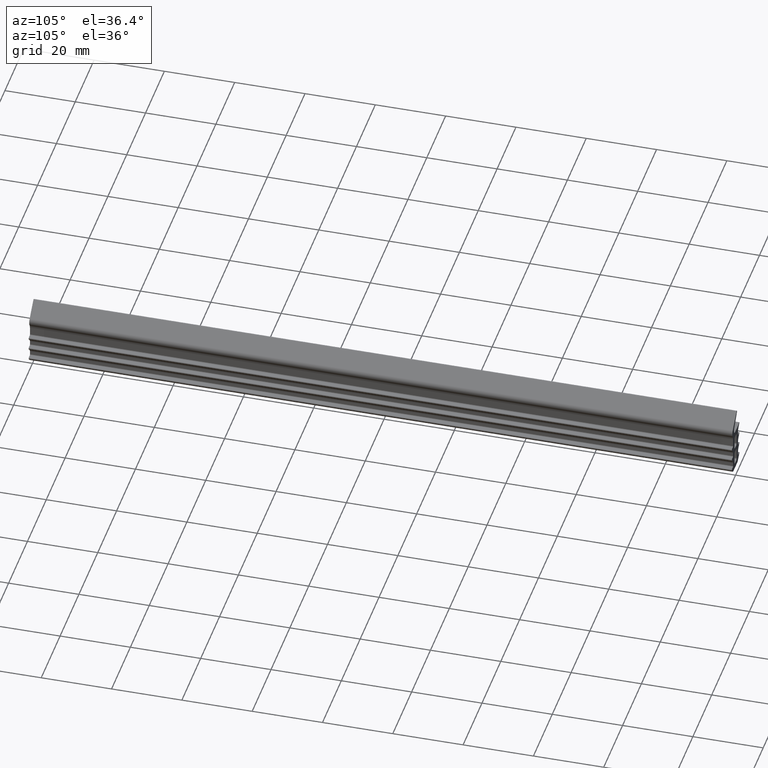
[diagram: clean part render]
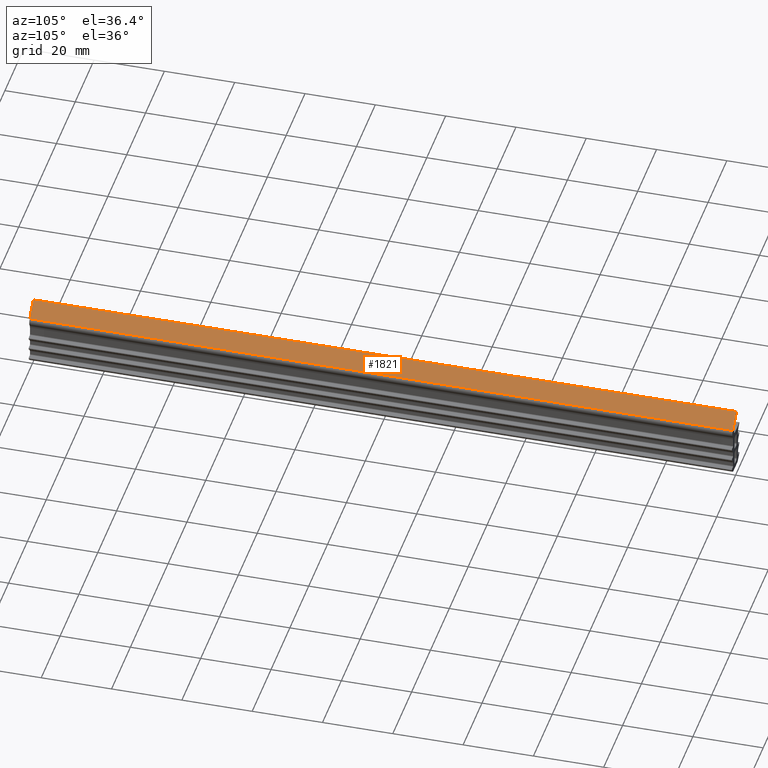
[diagram: same view with one face highlighted and labeled with its STEP entity id]
A machine part, auxiliary view. The second image highlights one B-rep face of the part: STEP entity #1821.
In plain terms, the highlighted face is a freeform B-spline surface patch.
Its self-contained STEP definition (entity closure, byte-faithful):
#66=CARTESIAN_POINT('',(2.955133468873470,0.0,14.313421980133480));
#67=VERTEX_POINT('',#66);
#81=CARTESIAN_POINT('',(-1.042973383837524,0.0,17.922685111338801));
#82=VERTEX_POINT('',#81);
#83=CARTESIAN_POINT('',(-1.042973383837524,0.0,17.922685111338801));
#84=CARTESIAN_POINT('',(2.955133468873470,0.0,14.313421980133480));
#85=QUASI_UNIFORM_CURVE('',1,(#83,#84),.UNSPECIFIED.,.F.,.U.);
#86=EDGE_CURVE('',#82,#67,#85,.T.);
#1364=CARTESIAN_POINT('',(-1.042973383837524,200.0,17.922685111338801));
#1365=VERTEX_POINT('',#1364);
#1381=CARTESIAN_POINT('',(2.955133468873470,200.0,14.313421980133480));
#1382=VERTEX_POINT('',#1381);
#1383=CARTESIAN_POINT('',(-1.042973383837524,200.0,17.922685111338801));
#1384=CARTESIAN_POINT('',(2.955133468873470,200.0,14.313421980133480));
#1385=QUASI_UNIFORM_CURVE('',1,(#1383,#1384),.UNSPECIFIED.,.F.,.U.);
#1386=EDGE_CURVE('',#1365,#1382,#1385,.T.);
#1654=CARTESIAN_POINT('',(2.955133468873470,200.0,14.313421980133480));
#1655=CARTESIAN_POINT('',(2.955133468873470,0.0,14.313421980133480));
#1656=QUASI_UNIFORM_CURVE('',1,(#1654,#1655),.UNSPECIFIED.,.F.,.U.);
#1657=EDGE_CURVE('',#1382,#67,#1656,.T.);
#1806=CARTESIAN_POINT('',(3.154838800107172,-9.989999612361194,14.133139382473880));
#1807=CARTESIAN_POINT('',(-1.242679215512325,-9.989999612361194,18.102968160770029));
#1808=CARTESIAN_POINT('',(3.154838800107172,209.990004976779200,14.133139382473880));
#1809=CARTESIAN_POINT('',(-1.242679215512325,209.990004976779200,18.102968160770029));
#1810=B_SPLINE_SURFACE_WITH_KNOTS('',1,1,((#1806,#1808),(#1807,#1809)),.UNSPECIFIED.,.F.,.F.,.U.,(2,2),(2,2),(0.0,5.924331627001169),(0.0,219.980004589140410),.UNSPECIFIED.);
#1811=ORIENTED_EDGE('',*,*,#86,.T.);
#1812=ORIENTED_EDGE('',*,*,#1657,.F.);
#1813=ORIENTED_EDGE('',*,*,#1386,.F.);
#1814=CARTESIAN_POINT('',(-1.042973383837524,200.0,17.922685111338801));
#1815=CARTESIAN_POINT('',(-1.042973383837524,0.0,17.922685111338801));
#1816=QUASI_UNIFORM_CURVE('',1,(#1814,#1815),.UNSPECIFIED.,.F.,.U.);
#1817=EDGE_CURVE('',#1365,#82,#1816,.T.);
#1818=ORIENTED_EDGE('',*,*,#1817,.T.);
#1819=EDGE_LOOP('',(#1811,#1812,#1813,#1818));
#1820=FACE_OUTER_BOUND('',#1819,.T.);
#1821=ADVANCED_FACE('',(#1820),#1810,.F.);